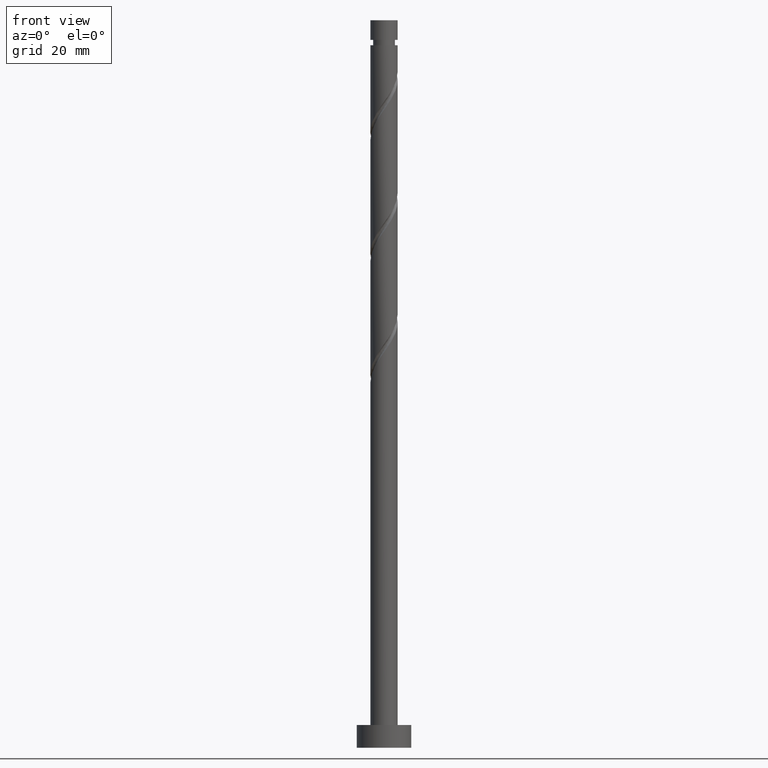
[diagram: clean part render]
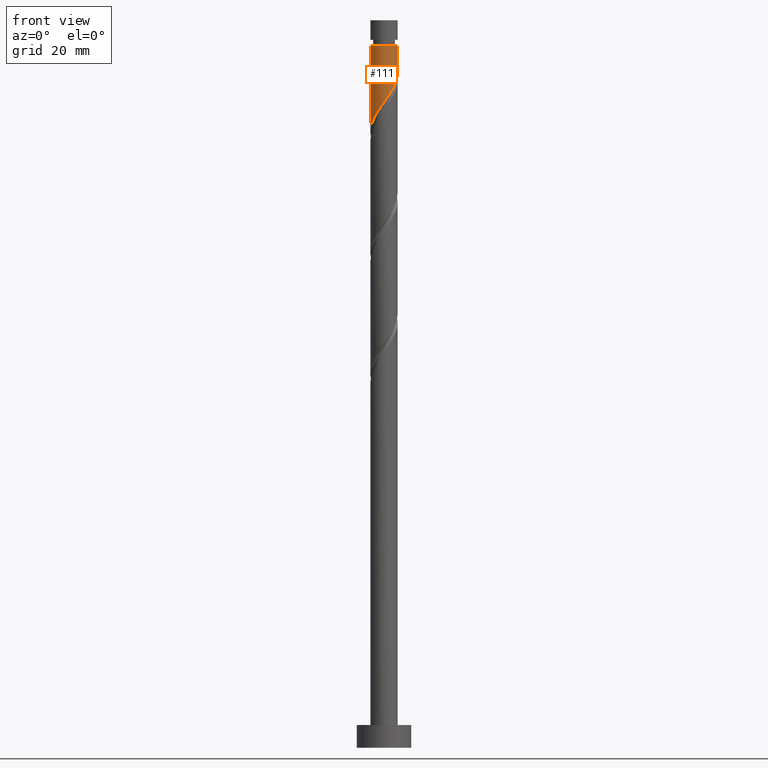
[diagram: same view with one face highlighted and labeled with its STEP entity id]
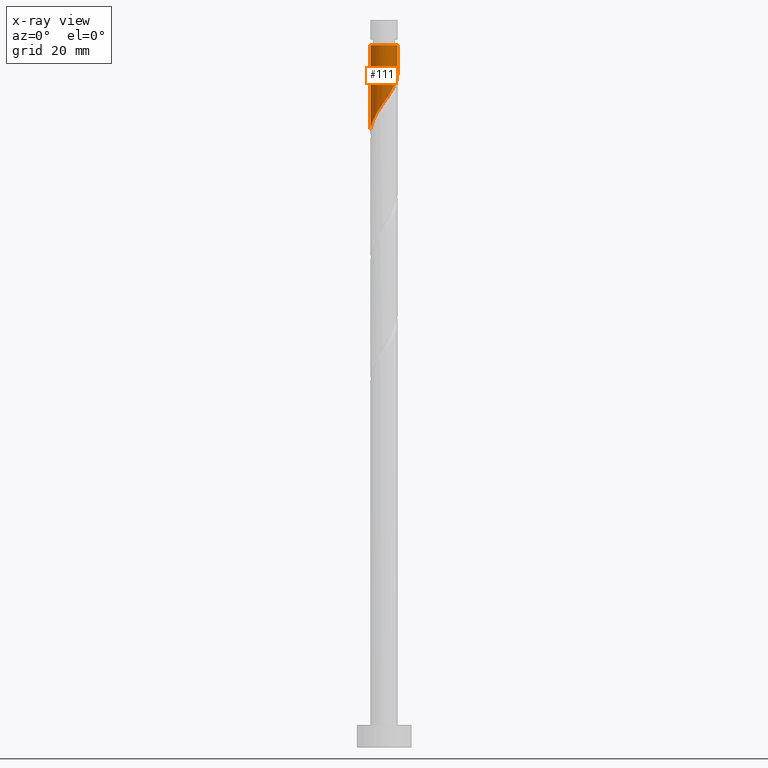
[diagram: x-ray of the same camera — body ghosted, the highlighted face saturated]
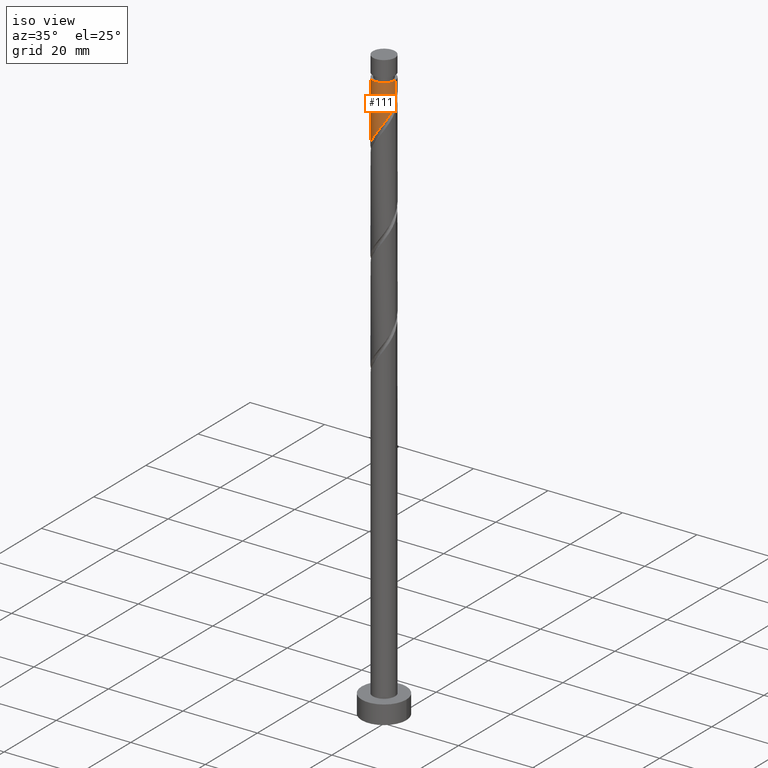
[diagram: same view with one face highlighted and labeled with its STEP entity id]
A machine part, front view. The second image highlights one B-rep face of the part: STEP entity #111.
The next image is the same camera in x-ray: the body ghosted, the highlighted face saturated — about 0% of this face is hidden behind the body in this view.
A second angle (iso view) of the same face is appended — the face is thin or edge-on in the first view.
In plain terms, the highlighted cylindrical surface (edge-blend (fillet) strip) has radius 3 mm, axis along (-0, -0, -1).
Its self-contained STEP definition (entity closure, byte-faithful):
#12 = CARTESIAN_POINT ( 'NONE',  ( 0.000000000000000000, 0.000000000000000000, 154.5060346941957334 ) ) ;
#111 = ADVANCED_FACE ( 'NONE', ( #1048 ), #1566, .T. ) ;
#183 = CARTESIAN_POINT ( 'NONE',  ( -3.000000000000000444, -1.420897966832162630E-15, 135.3554891734966361 ) ) ;
#248 = DIRECTION ( 'NONE',  ( -1.000000000000000000, 0.000000000000000000, 0.000000000000000000 ) ) ;
#250 = VERTEX_POINT ( 'NONE', #1162 ) ;
#254 = VECTOR ( 'NONE', #391, 1000.000000000000000 ) ;
#258 = CARTESIAN_POINT ( 'NONE',  ( 2.426318434868868223, -1.764363582886330217, 146.0211862093472348 ) ) ;
#270 = CARTESIAN_POINT ( 'NONE',  ( 3.000000000000000444, 7.777546765818154195E-16, 148.6888225068299789 ) ) ;
#299 = EDGE_CURVE ( 'NONE', #513, #491, #1185, .T. ) ;
#302 = DIRECTION ( 'NONE',  ( -0.000000000000000000, -0.000000000000000000, -1.000000000000000000 ) ) ;
#328 = CARTESIAN_POINT ( 'NONE',  ( -2.999999999999999556, -0.3435867821553691970, 135.8414491264678929 ) ) ;
#391 = DIRECTION ( 'NONE',  ( -0.000000000000000000, -0.000000000000000000, -1.000000000000000000 ) ) ;
#470 = CARTESIAN_POINT ( 'NONE',  ( 1.489272404272449890, -2.639719205955341597, 144.2030043911654502 ) ) ;
#478 = EDGE_CURVE ( 'NONE', #1181, #250, #1646, .T. ) ;
#491 = VERTEX_POINT ( 'NONE', #1638 ) ;
#513 = VERTEX_POINT ( 'NONE', #1042 ) ;
#529 = CARTESIAN_POINT ( 'NONE',  ( 2.825114153412474849, -1.009321564313632180, 147.2333074214684814 ) ) ;
#562 = DIRECTION ( 'NONE',  ( -0.000000000000000000, -0.000000000000000000, -1.000000000000000000 ) ) ;
#590 = EDGE_CURVE ( 'NONE', #513, #1181, #1567, .T. ) ;
#596 = CARTESIAN_POINT ( 'NONE',  ( -2.400905109240607072, -1.849784970432858833, 138.1423983305593595 ) ) ;
#606 = CARTESIAN_POINT ( 'NONE',  ( -0.5969924622639730671, -2.940000000000001279, 141.1727013608624475 ) ) ;
#714 = CARTESIAN_POINT ( 'NONE',  ( 1.830956826603530985, -2.376467357047836071, 144.8090649972260735 ) ) ;
#732 = CARTESIAN_POINT ( 'NONE',  ( -2.091706021272609739, -2.150526893710448917, 138.7484589366200396 ) ) ;
#748 = EDGE_LOOP ( 'NONE', ( #1611, #1020, #1469, #795 ) ) ;
#791 = CARTESIAN_POINT ( 'NONE',  ( -2.999999999999993783, 0.000000000000000000, 154.5060346941957334 ) ) ;
#792 = CARTESIAN_POINT ( 'NONE',  ( 0.000000000000000000, 0.000000000000000000, 160.0000000000000000 ) ) ;
#795 = ORIENTED_EDGE ( 'NONE', *, *, #1354, .F. ) ;
#812 = CARTESIAN_POINT ( 'NONE',  ( 3.000000000000001332, -0.08632657957146741556, 148.5667245021117822 ) ) ;
#822 = CARTESIAN_POINT ( 'NONE',  ( 2.679995620803123035, -1.415511657632330778, 146.6272468154078297 ) ) ;
#833 = CARTESIAN_POINT ( 'NONE',  ( 3.000000000000000444, 3.673940397442060361E-16, 160.0000000000000000 ) ) ;
#845 = CARTESIAN_POINT ( 'NONE',  ( -1.019700646609193795, -2.854165442247827311, 140.5666407548017389 ) ) ;
#860 = CARTESIAN_POINT ( 'NONE',  ( -1.401103789956902768, -2.652717129617932823, 139.9605801487412009 ) ) ;
#963 = CARTESIAN_POINT ( 'NONE',  ( 0.2554836442707028588, -2.989101555235312180, 142.3848225729836372 ) ) ;
#977 = CARTESIAN_POINT ( 'NONE',  ( -2.922317697815699944, -0.6782766935647618345, 136.3242165123775749 ) ) ;
#1020 = ORIENTED_EDGE ( 'NONE', *, *, #590, .T. ) ;
#1042 = CARTESIAN_POINT ( 'NONE',  ( 2.999999999999993783, 3.673940397442056417E-16, 154.5060346941957334 ) ) ;
#1048 = FACE_OUTER_BOUND ( 'NONE', #748, .T. ) ;
#1061 = DIRECTION ( 'NONE',  ( -1.000000000000000000, 0.000000000000000000, 0.000000000000000000 ) ) ;
#1070 = VECTOR ( 'NONE', #302, 1000.000000000000000 ) ;
#1090 = AXIS2_PLACEMENT_3D ( 'NONE', #792, #1554, #248 ) ;
#1096 = CARTESIAN_POINT ( 'NONE',  ( 1.087261985366304362, -2.796043879336897131, 143.5969437851048269 ) ) ;
#1143 = CARTESIAN_POINT ( 'NONE',  ( 2.995035924847410325, -0.1725103152667160356, 148.4454286335897280 ) ) ;
#1162 = CARTESIAN_POINT ( 'NONE',  ( -3.000000000000000444, -1.420897966832162630E-15, 135.3554891734966361 ) ) ;
#1181 = VERTEX_POINT ( 'NONE', #791 ) ;
#1184 = CARTESIAN_POINT ( 'NONE',  ( 0.6852515664601589451, -2.952368552718451333, 142.9908831790442605 ) ) ;
#1185 = LINE ( 'NONE', #833, #1070 ) ;
#1196 = CARTESIAN_POINT ( 'NONE',  ( -2.612850670599506930, -1.474113758550439801, 137.5363377244987646 ) ) ;
#1202 = CARTESIAN_POINT ( 'NONE',  ( -0.1742842779187515623, -3.025834557752173470, 141.7787619669229571 ) ) ;
#1267 = CARTESIAN_POINT ( 'NONE',  ( 2.172641248934613856, -2.113215508140329657, 145.4151256032866399 ) ) ;
#1354 = EDGE_CURVE ( 'NONE', #491, #250, #1517, .T. ) ;
#1428 = CARTESIAN_POINT ( 'NONE',  ( 2.970232686021826218, -0.6031314709949334718, 147.8393680275290762 ) ) ;
#1469 = ORIENTED_EDGE ( 'NONE', *, *, #478, .T. ) ;
#1515 = CARTESIAN_POINT ( 'NONE',  ( -3.000000000000000444, 0.000000000000000000, 160.0000000000000000 ) ) ;
#1517 =( BOUNDED_CURVE ( )  B_SPLINE_CURVE ( 2, ( #270, #812, #1143, #1428, #529, #822, #258, #1267, #714, #470, #1096, #1184, #963, #1202, #606, #845, #860, #1583, #732, #596, #1196, #1577, #977, #328, #183 ),
 .UNSPECIFIED., .F., .T. ) 
 B_SPLINE_CURVE_WITH_KNOTS ( ( 3, 2, 2, 2, 2, 2, 2, 2, 2, 2, 2, 2, 3 ),
 ( 0.3045252162417513286, 0.3068181818181818232, 0.3181818181818181768, 0.3295454545454545303, 0.3409090909090908839, 0.3522727272727272929, 0.3636363636363636465, 0.3750000000000000000, 0.3863636363636363535, 0.3977272727272727071, 0.4090909090909091161, 0.4204545454545454697, 0.4295252162417513286 ),
 .UNSPECIFIED. ) 
 CURVE ( )  GEOMETRIC_REPRESENTATION_ITEM ( )  RATIONAL_B_SPLINE_CURVE ( ( 0.9061101570135582373, 0.9072237824201403456, 0.9090909090909178314, 0.8998376744372202918, 0.9090909090909178314, 0.8998376744372202918, 0.9090909090909178314, 0.8998376744372202918, 0.9090909090909178314, 0.8998376744372202918, 0.9090909090909178314, 0.8998376744372202918, 0.9090909090909178314, 0.8998376744372202918, 0.9090909090909178314, 0.8998376744372202918, 0.9090909090909178314, 0.8998376744372202918, 0.9090909090909178314, 0.8998376744372202918, 0.9090909090909178314, 0.8998376744372202918, 0.9090909090909178314, 0.9017048011079977776, 0.9061101570135582373 ) ) 
 REPRESENTATION_ITEM ( '' )  );
#1554 = DIRECTION ( 'NONE',  ( -0.000000000000000000, -0.000000000000000000, -1.000000000000000000 ) ) ;
#1566 = CYLINDRICAL_SURFACE ( 'NONE', #1090, 3.000000000000000444 ) ;
#1567 = CIRCLE ( 'NONE', #1616, 2.999999999999993783 ) ;
#1577 = CARTESIAN_POINT ( 'NONE',  ( -2.824796231958407677, -1.098442546668020769, 136.9302771184381413 ) ) ;
#1583 = CARTESIAN_POINT ( 'NONE',  ( -1.782506933304611518, -2.451268816988037891, 139.3545195426805492 ) ) ;
#1611 = ORIENTED_EDGE ( 'NONE', *, *, #299, .F. ) ;
#1616 = AXIS2_PLACEMENT_3D ( 'NONE', #12, #562, #1061 ) ;
#1638 = CARTESIAN_POINT ( 'NONE',  ( 3.000000000000000444, 7.777546765818154195E-16, 148.6888225068299789 ) ) ;
#1646 = LINE ( 'NONE', #1515, #254 ) ;